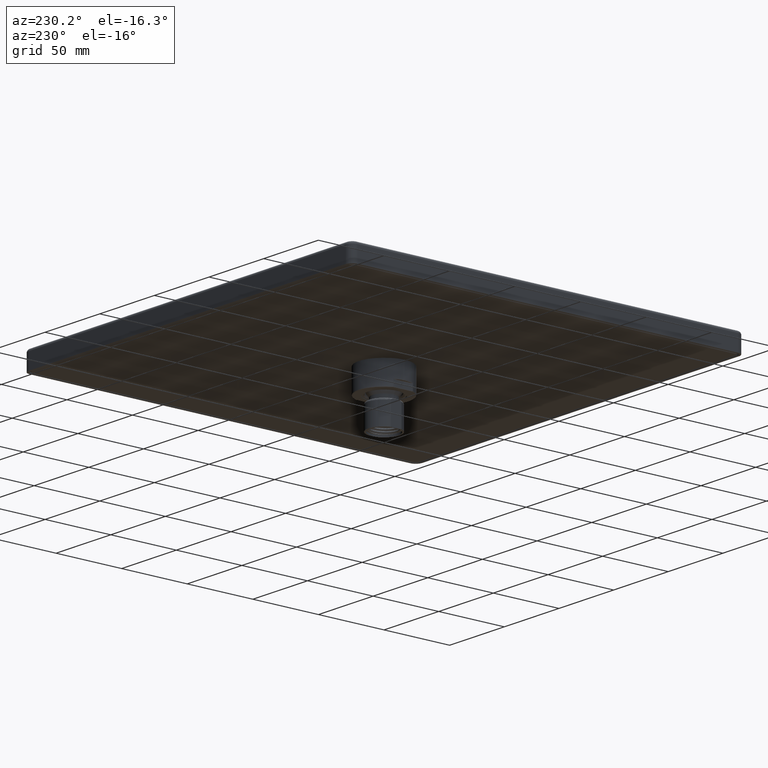
[diagram: clean part render]
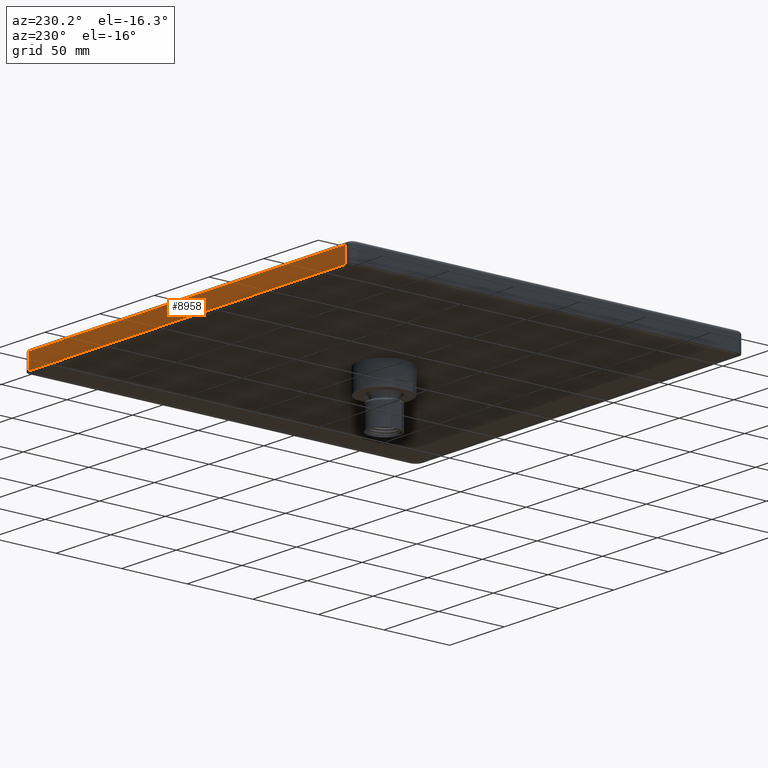
[diagram: same view with one face highlighted and labeled with its STEP entity id]
A machine part, auxiliary view. The second image highlights one B-rep face of the part: STEP entity #8958.
In plain terms, the highlighted planar face has unit normal (0, 1, 0).
Its self-contained STEP definition (entity closure, byte-faithful):
#57=DIRECTION('',(-4.229949723822E-13,0.E0,-1.E0));
#58=VECTOR('',#57,4.724409448819E-1);
#59=CARTESIAN_POINT('',(5.708661417322E0,5.905511811024E0,4.724409448819E-1));
#60=LINE('',#59,#58);
#2161=DIRECTION('',(-1.244545207631E-12,0.E0,1.E0));
#2162=VECTOR('',#2161,4.724409448819E-1);
#2163=CARTESIAN_POINT('',(-5.708661417320E0,5.905511811024E0,0.E0));
#2164=LINE('',#2163,#2162);
#2165=DIRECTION('',(1.E0,0.E0,0.E0));
#2166=VECTOR('',#2165,1.141732283464E1);
#2167=CARTESIAN_POINT('',(-5.708661417320E0,5.905511811024E0,0.E0));
#2168=LINE('',#2167,#2166);
#2173=DIRECTION('',(1.E0,0.E0,0.E0));
#2174=VECTOR('',#2173,1.141732283464E1);
#2175=CARTESIAN_POINT('',(-5.708661417321E0,5.905511811024E0,
4.724409448819E-1));
#2176=LINE('',#2175,#2174);
#5850=CARTESIAN_POINT('',(5.708661417323E0,5.905511811024E0,0.E0));
#5852=VERTEX_POINT('',#5850);
#5853=CARTESIAN_POINT('',(-5.708661417320E0,5.905511811024E0,0.E0));
#5854=VERTEX_POINT('',#5853);
#7491=CARTESIAN_POINT('',(5.708661417323E0,5.905511811024E0,4.724409448819E-1));
#7492=VERTEX_POINT('',#7491);
#7493=CARTESIAN_POINT('',(-5.708661417323E0,5.905511811024E0,
4.724409448819E-1));
#7494=VERTEX_POINT('',#7493);
#8946=CARTESIAN_POINT('',(5.905511811024E0,5.905511811024E0,0.E0));
#8947=DIRECTION('',(0.E0,1.E0,0.E0));
#8948=DIRECTION('',(-1.E0,0.E0,0.E0));
#8949=AXIS2_PLACEMENT_3D('',#8946,#8947,#8948);
#8950=PLANE('',#8949);
#8952=ORIENTED_EDGE('',*,*,#8951,.F.);
#8953=ORIENTED_EDGE('',*,*,#8941,.F.);
#8954=ORIENTED_EDGE('',*,*,#7520,.T.);
#8955=ORIENTED_EDGE('',*,*,#7562,.F.);
#8956=EDGE_LOOP('',(#8952,#8953,#8954,#8955));
#8957=FACE_OUTER_BOUND('',#8956,.F.);
#8958=ADVANCED_FACE('',(#8957),#8950,.T.);
#7520=EDGE_CURVE('',#5854,#5852,#2168,.T.);
#7562=EDGE_CURVE('',#7492,#5852,#60,.T.);
#8941=EDGE_CURVE('',#5854,#7494,#2164,.T.);
#8951=EDGE_CURVE('',#7494,#7492,#2176,.T.);